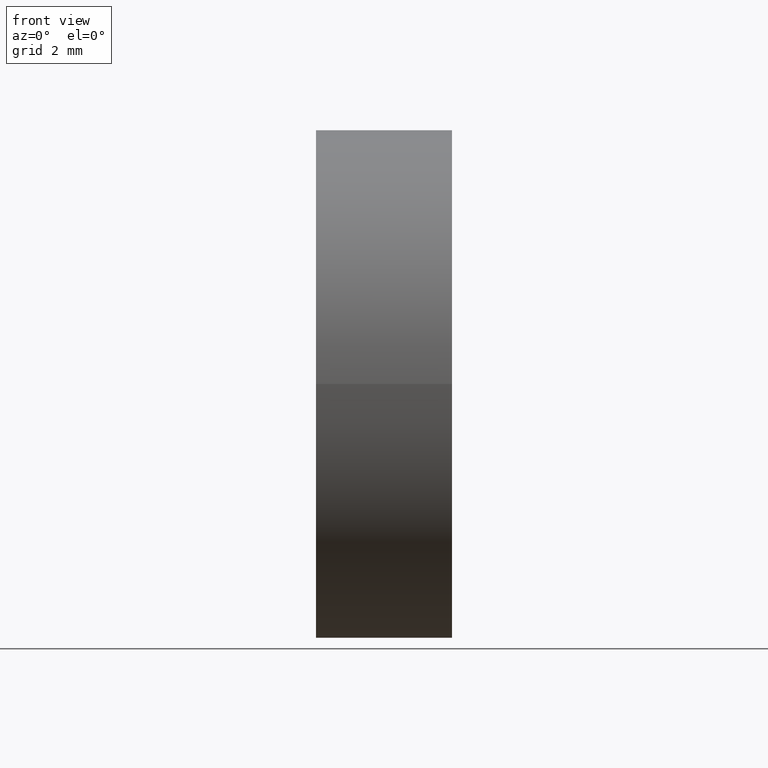
[diagram: clean part render]
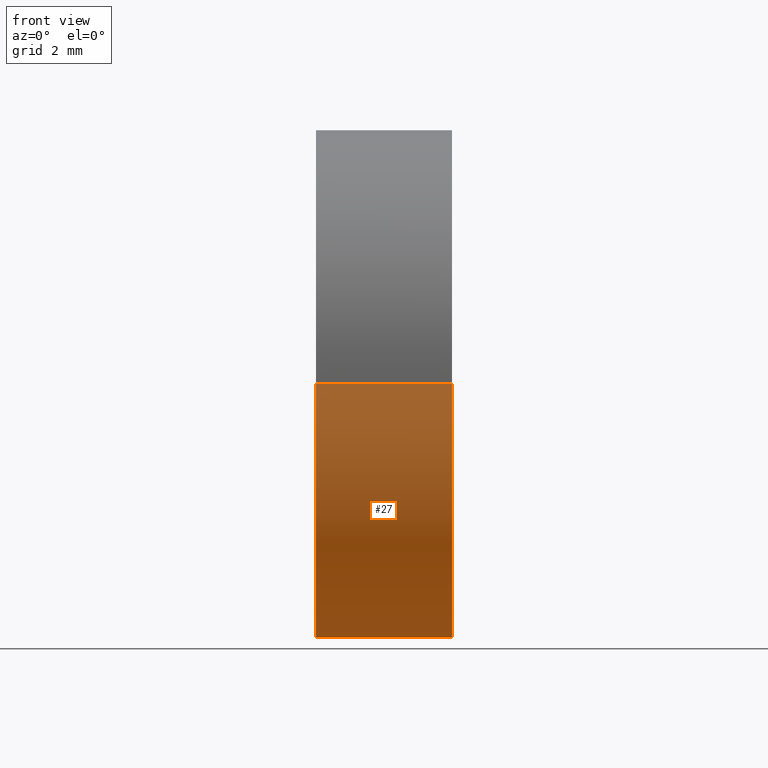
[diagram: same view with one face highlighted and labeled with its STEP entity id]
A machine part, front view. The second image highlights one B-rep face of the part: STEP entity #27.
In plain terms, the highlighted cylindrical surface (partial cylindrical patch) has radius 8 mm, axis along (-1, 0, -0).
Its self-contained STEP definition (entity closure, byte-faithful):
#1 = VERTEX_POINT ( 'NONE', #114 ) ;
#5 = DIRECTION ( 'NONE',  ( 0.0000000000000000000, -1.000000000000000000, 0.0000000000000000000 ) ) ;
#6 = ORIENTED_EDGE ( 'NONE', *, *, #50, .T. ) ;
#8 = DIRECTION ( 'NONE',  ( 0.0000000000000000000, -1.000000000000000000, 0.0000000000000000000 ) ) ;
#11 = ORIENTED_EDGE ( 'NONE', *, *, #42, .T. ) ;
#12 = VECTOR ( 'NONE', #161, 1000.000000000000000 ) ;
#14 = VERTEX_POINT ( 'NONE', #141 ) ;
#21 = VERTEX_POINT ( 'NONE', #52 ) ;
#22 = LINE ( 'NONE', #102, #64 ) ;
#24 = EDGE_LOOP ( 'NONE', ( #139, #11, #6, #143 ) ) ;
#27 = ADVANCED_FACE ( 'NONE', ( #28 ), #92, .T. ) ;
#28 = FACE_OUTER_BOUND ( 'NONE', #24, .T. ) ;
#32 = VERTEX_POINT ( 'NONE', #43 ) ;
#41 = CIRCLE ( 'NONE', #136, 8.000000000000000000 ) ;
#42 = EDGE_CURVE ( 'NONE', #32, #1, #45, .T. ) ;
#43 = CARTESIAN_POINT ( 'NONE',  ( 49.13169841185359100, 34.06225218280607700, 9.797174393178821700E-016 ) ) ;
#45 = CIRCLE ( 'NONE', #125, 8.000000000000003600 ) ;
#50 = EDGE_CURVE ( 'NONE', #1, #21, #22, .T. ) ;
#52 = CARTESIAN_POINT ( 'NONE',  ( 44.85442262622448300, 18.06225218280608400, 0.0000000000000000000 ) ) ;
#61 = DIRECTION ( 'NONE',  ( -1.000000000000000000, 4.058245434298766700E-016, -0.0000000000000000000 ) ) ;
#64 = VECTOR ( 'NONE', #61, 1000.000000000000000 ) ;
#78 = DIRECTION ( 'NONE',  ( -1.000000000000000000, 4.058245434298766700E-016, -0.0000000000000000000 ) ) ;
#79 = EDGE_CURVE ( 'NONE', #14, #21, #41, .T. ) ;
#86 = CARTESIAN_POINT ( 'NONE',  ( 44.85442262622448300, 26.06225218280608400, 0.0000000000000000000 ) ) ;
#89 = CARTESIAN_POINT ( 'NONE',  ( 49.13169841185359100, 26.06225218280608000, 0.0000000000000000000 ) ) ;
#92 = CYLINDRICAL_SURFACE ( 'NONE', #155, 8.000000000000000000 ) ;
#102 = CARTESIAN_POINT ( 'NONE',  ( 43.01195023616492100, 18.06225218280608400, 0.0000000000000000000 ) ) ;
#111 = EDGE_CURVE ( 'NONE', #32, #14, #132, .T. ) ;
#114 = CARTESIAN_POINT ( 'NONE',  ( 49.13169841185359100, 18.06225218280608000, 0.0000000000000000000 ) ) ;
#125 = AXIS2_PLACEMENT_3D ( 'NONE', #89, #126, #127 ) ;
#126 = DIRECTION ( 'NONE',  ( -1.000000000000000000, 4.058245434298766700E-016, -0.0000000000000000000 ) ) ;
#127 = DIRECTION ( 'NONE',  ( 0.0000000000000000000, -1.000000000000000000, 0.0000000000000000000 ) ) ;
#132 = LINE ( 'NONE', #149, #12 ) ;
#136 = AXIS2_PLACEMENT_3D ( 'NONE', #86, #78, #8 ) ;
#139 = ORIENTED_EDGE ( 'NONE', *, *, #111, .F. ) ;
#141 = CARTESIAN_POINT ( 'NONE',  ( 44.85442262622448300, 34.06225218280608400, 9.797174393178827600E-016 ) ) ;
#143 = ORIENTED_EDGE ( 'NONE', *, *, #79, .F. ) ;
#146 = CARTESIAN_POINT ( 'NONE',  ( 43.01195023616492100, 26.06225218280608400, 0.0000000000000000000 ) ) ;
#149 = CARTESIAN_POINT ( 'NONE',  ( 43.01195023616492100, 34.06225218280608400, 9.797174393178827600E-016 ) ) ;
#155 = AXIS2_PLACEMENT_3D ( 'NONE', #146, #156, #5 ) ;
#156 = DIRECTION ( 'NONE',  ( -1.000000000000000000, 4.058245434298766700E-016, -0.0000000000000000000 ) ) ;
#161 = DIRECTION ( 'NONE',  ( -1.000000000000000000, 4.058245434298766700E-016, -0.0000000000000000000 ) ) ;